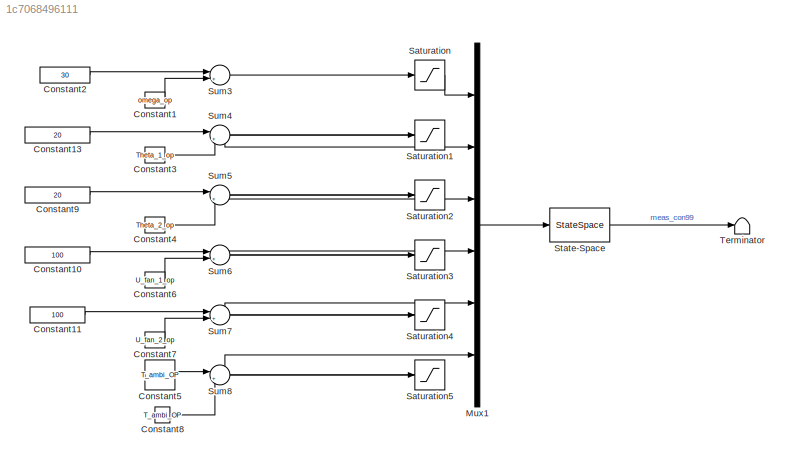
MODEL slx_1c7068496111
KIND model
CONFIG AbsTol = auto
CONFIG EnableMultiTasking = off
CONFIG FixedStep = auto
CONFIG MaxStep = 0.01
CONFIG MinStep = auto
CONFIG RelTol = 1e-3
CONFIG SampleTimeConstraint = Unconstrained
CONFIG SolverName = VariableStepAuto
CONFIG StartTime = 0.0
CONFIG StopTime = 10000
BLOCK [Constant] Constant1
  Value = omega_op
BLOCK [Constant] Constant10
  Value = 100
BLOCK [Constant] Constant11
  Value = 100
BLOCK [Constant] Constant13
  Value = 20
BLOCK [Constant] Constant2
  Value = 30
BLOCK [Constant] Constant3
  Value = Theta_1_op
BLOCK [Constant] Constant4
  Value = Theta_2_op
BLOCK [Constant] Constant5
  Value = T_ambi_OP
BLOCK [Constant] Constant6
  Value = U_fan_1_op
BLOCK [Constant] Constant7
  Value = U_fan_2_op
BLOCK [Constant] Constant8
  Value = T_ambi_OP
BLOCK [Constant] Constant9
  Value = 20
BLOCK [Mux] Mux1
  DisplayOption = bar
  Inputs = 6
  Ports = [6, 1]
BLOCK [Saturate] Saturation
  LowerLimit = 0
  UpperLimit = 100
BLOCK [Saturate] Saturation1
  LowerLimit = 0
  UpperLimit = 100
BLOCK [Saturate] Saturation2
  LowerLimit = 0
  UpperLimit = 100
BLOCK [Saturate] Saturation3
  LowerLimit = 0
  UpperLimit = 100
BLOCK [Saturate] Saturation4
  LowerLimit = 0
  UpperLimit = 100
BLOCK [Saturate] Saturation5
  LowerLimit = 0
  UpperLimit = 100
BLOCK [StateSpace] State-Space
  A = A_matrix_lin
  B = [B_matrix_lin Bd_matrix_lin]
  C = eye(11)
  D = zeros(11,6)
  InitialCondition = 0
  Ports = [1, 1]
BLOCK [Sum] Sum3
  Inputs = |+-
  Ports = [2, 1]
BLOCK [Sum] Sum4
  Inputs = |+-
  Ports = [2, 1]
BLOCK [Sum] Sum5
  Inputs = |+-
  Ports = [2, 1]
BLOCK [Sum] Sum6
  Inputs = |+-
  Ports = [2, 1]
BLOCK [Sum] Sum7
  Inputs = |+-
  Ports = [2, 1]
BLOCK [Sum] Sum8
  Inputs = |+-
  Ports = [2, 1]
BLOCK [Terminator] Terminator
LINE Constant10:1 -> Sum6:1
LINE Constant11:1 -> Sum7:1
LINE Constant13:1 -> Sum4:1
LINE Constant1:1 -> Sum3:2
LINE Constant2:1 -> Sum3:1
LINE Constant3:1 -> Sum4:2
LINE Constant4:1 -> Sum5:2
LINE Constant5:1 -> Sum8:1
LINE Constant6:1 -> Sum6:2
LINE Constant7:1 -> Sum7:2
LINE Constant8:1 -> Sum8:2
LINE Constant9:1 -> Sum5:1
LINE Mux1:1 -> State-Space:1
LINE Saturation1:1 -> Mux1:2
LINE Saturation2:1 -> Mux1:3
LINE Saturation3:1 -> Mux1:4
LINE Saturation4:1 -> Mux1:5
LINE Saturation5:1 -> Mux1:6
LINE Saturation:1 -> Mux1:1
LINE State-Space:1 -> Terminator:1
LINE Sum3:1 -> Saturation:1
LINE Sum4:1 -> Saturation1:1
LINE Sum5:1 -> Saturation2:1
LINE Sum6:1 -> Saturation3:1
LINE Sum7:1 -> Saturation4:1
LINE Sum8:1 -> Saturation5:1
